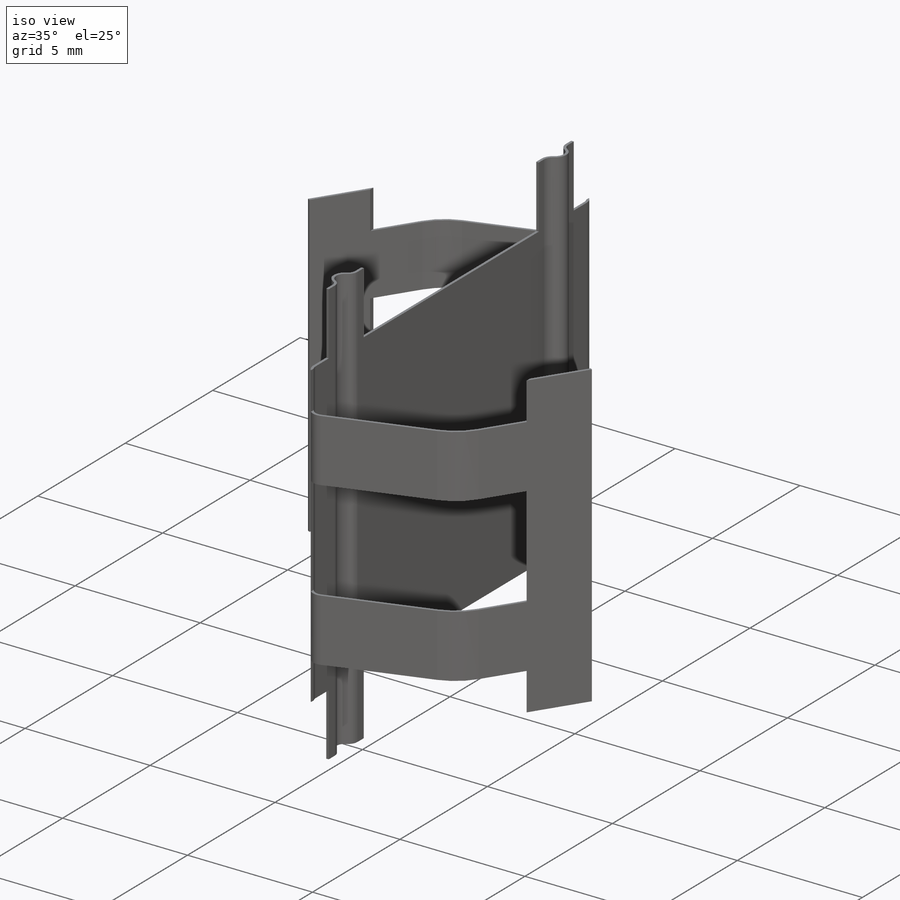
[diagram: iso view]
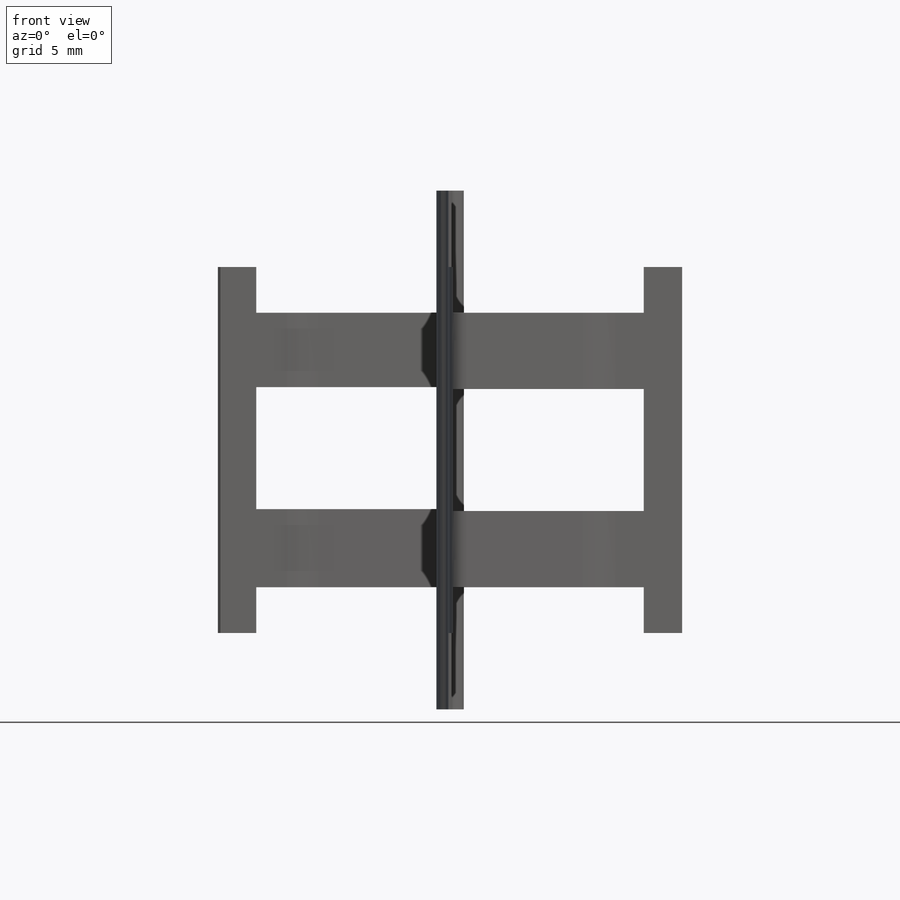
[diagram: front view]
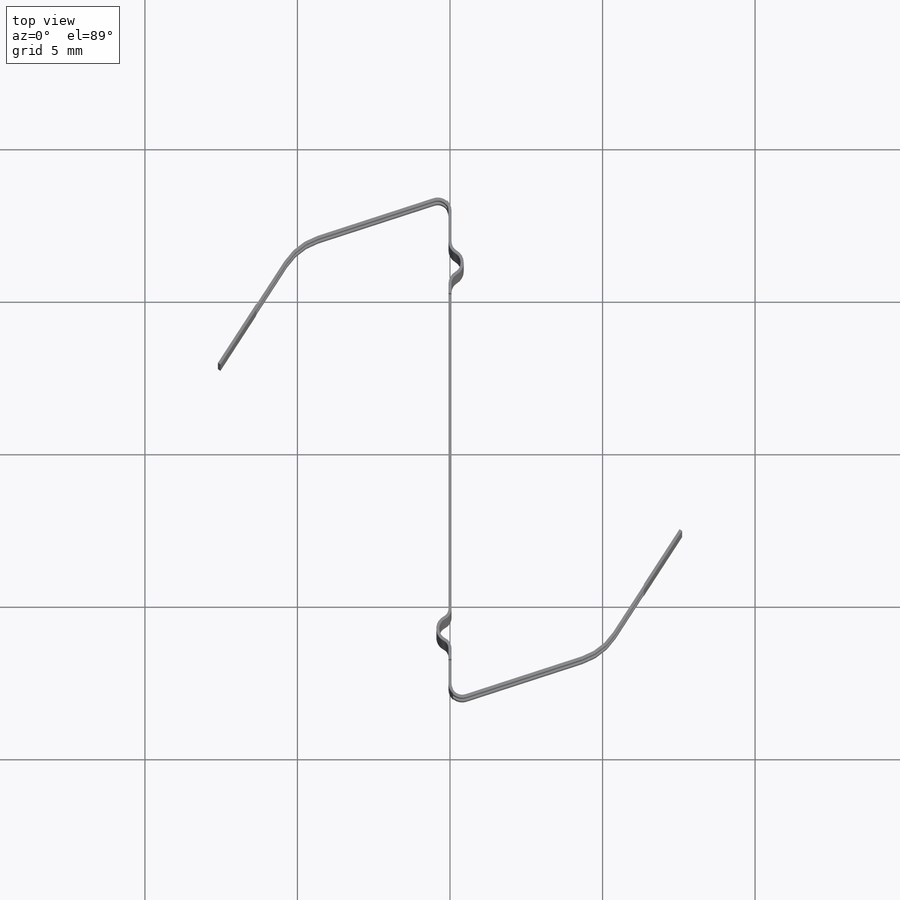
[diagram: top view]
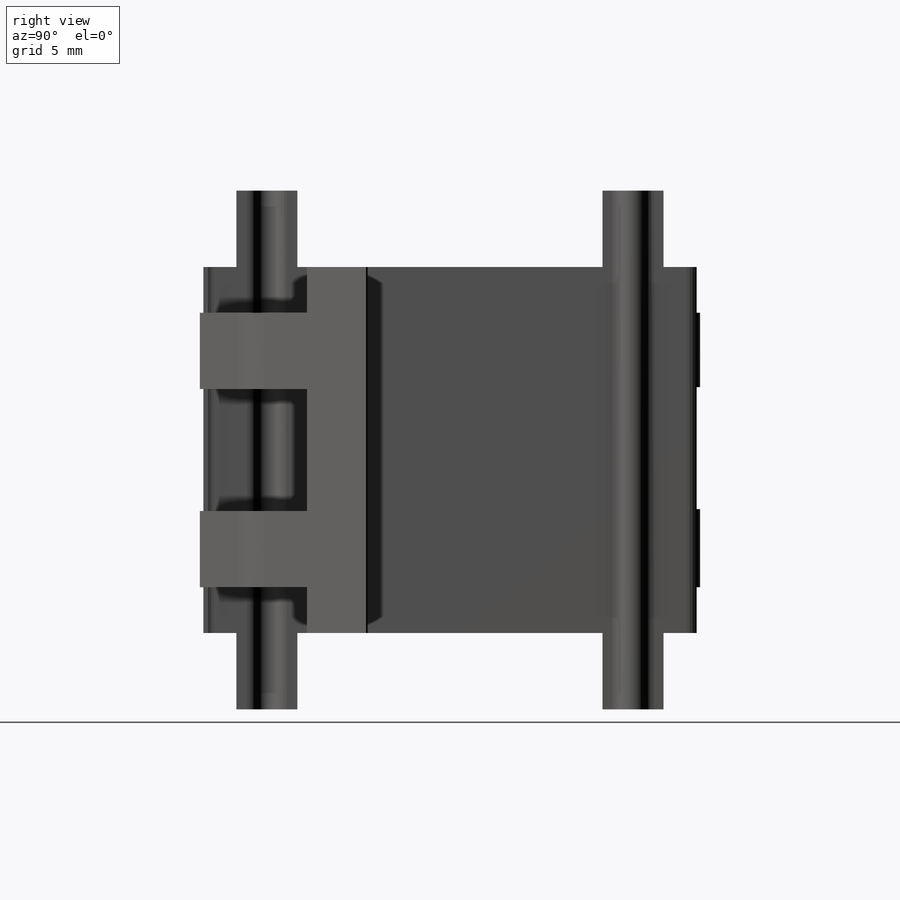
[diagram: right view]
SOLIDWORKS PART (.sldprt)
format: sldprt  version: not decoded by parser v0  size: 283,136 bytes
history: native  units: mm
features: plane x4, sketch x4, cut_extrude x3, material x1 (+12 scaffold rows collapsed)
feature tree (24):
  scaffold x12  (default folders/planes/origin — collapsed)
  material  "AISI 316 Stainless Steel Sheet (SS)"
  plane  "Plane1"
  sketch  "Sketch1"  dims[D1=8.5mm D2=8.5mm D3=0.0deg D4=0.0deg D5=0.1mm D6=0.0mm D7=0.0mm]
  plane  "Plane2"
  sketch  "Sketch2"  dims[D1=2.0mm D2=2.0mm D3=2.0mm D4=2.0mm]
  cut_extrude  "Extrude1"  Depth=10mm
  plane  "Plane3"
  sketch  "Sketch3"  dims[D1=6.25mm]
  cut_extrude  "Extrude2"  Depth=10mm
  plane  "Plane4"
  sketch  "Sketch4"
  cut_extrude  "Extrude3"  Depth=10mm
decode coverage: 6 of 7 modeling features carry decoded parameters
note: suppression state not decoded; provenance and decode notes live in map.json
